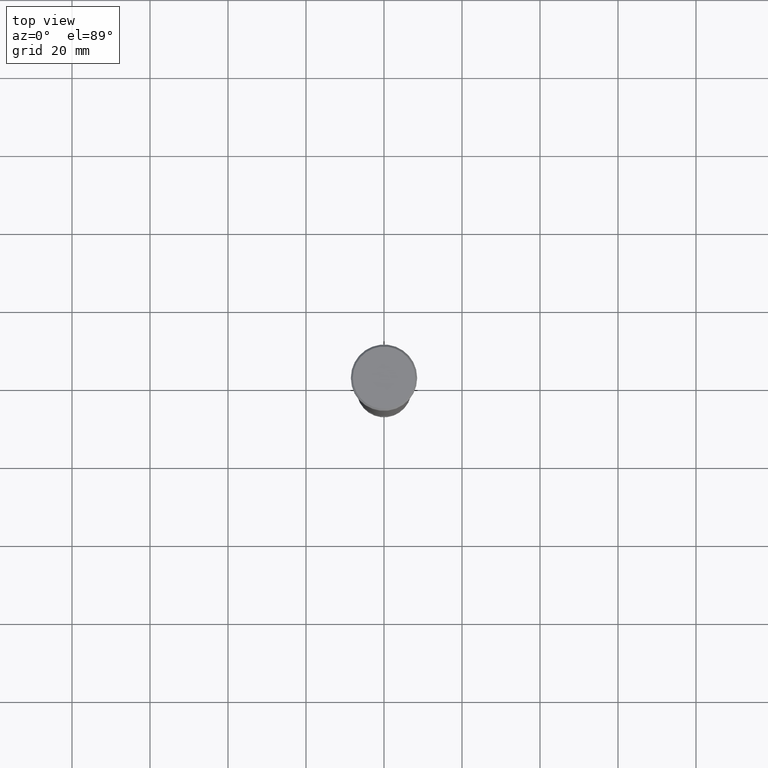
[diagram: clean part render]
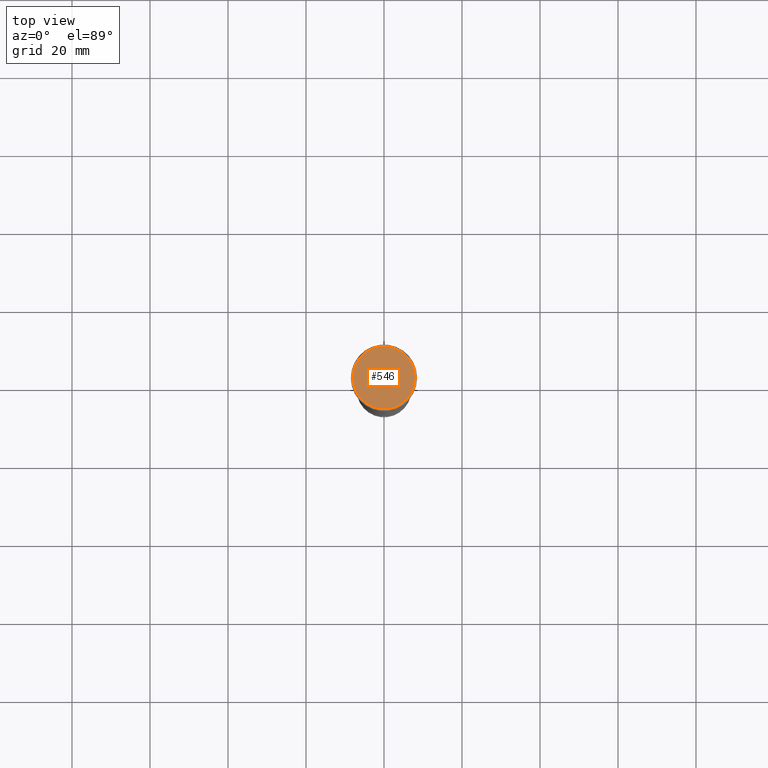
[diagram: same view with one face highlighted and labeled with its STEP entity id]
A machine part, top view. The second image highlights one B-rep face of the part: STEP entity #546.
In plain terms, the highlighted planar face has unit normal (0, -0, 1).
Its self-contained STEP definition (entity closure, byte-faithful):
#62 = AXIS2_PLACEMENT_3D ( 'NONE', #536, #817, #749 ) ;
#63 = EDGE_CURVE ( 'NONE', #514, #682, #814, .T. ) ;
#73 = CARTESIAN_POINT ( 'NONE',  ( -8.000000000000007105, 0.000000000000000000, 0.000000000000000000 ) ) ;
#79 = EDGE_CURVE ( 'NONE', #682, #514, #764, .T. ) ;
#98 = DIRECTION ( 'NONE',  ( 1.000000000000000000, 0.000000000000000000, 0.000000000000000000 ) ) ;
#109 = DIRECTION ( 'NONE',  ( 1.000000000000000000, 0.000000000000000000, 0.000000000000000000 ) ) ;
#313 = CARTESIAN_POINT ( 'NONE',  ( 0.000000000000000000, 0.000000000000000000, 0.000000000000000000 ) ) ;
#315 = CARTESIAN_POINT ( 'NONE',  ( 0.000000000000000000, 0.000000000000000000, 0.000000000000000000 ) ) ;
#316 = ORIENTED_EDGE ( 'NONE', *, *, #79, .T. ) ;
#379 = PLANE ( 'NONE',  #675 ) ;
#514 = VERTEX_POINT ( 'NONE', #707 ) ;
#536 = CARTESIAN_POINT ( 'NONE',  ( 0.000000000000000000, 0.000000000000000000, 0.000000000000000000 ) ) ;
#546 = ADVANCED_FACE ( 'NONE', ( #998 ), #379, .T. ) ;
#564 = DIRECTION ( 'NONE',  ( 0.000000000000000000, -0.000000000000000000, 1.000000000000000000 ) ) ;
#675 = AXIS2_PLACEMENT_3D ( 'NONE', #313, #564, #109 ) ;
#682 = VERTEX_POINT ( 'NONE', #73 ) ;
#707 = CARTESIAN_POINT ( 'NONE',  ( 8.000000000000007105, 1.010333609296566944E-15, 0.000000000000000000 ) ) ;
#749 = DIRECTION ( 'NONE',  ( 1.000000000000000000, 0.000000000000000000, 0.000000000000000000 ) ) ;
#760 = AXIS2_PLACEMENT_3D ( 'NONE', #315, #875, #98 ) ;
#764 = CIRCLE ( 'NONE', #760, 8.000000000000007105 ) ;
#814 = CIRCLE ( 'NONE', #62, 8.000000000000007105 ) ;
#817 = DIRECTION ( 'NONE',  ( -0.000000000000000000, -0.000000000000000000, 1.000000000000000000 ) ) ;
#818 = ORIENTED_EDGE ( 'NONE', *, *, #63, .T. ) ;
#875 = DIRECTION ( 'NONE',  ( -0.000000000000000000, -0.000000000000000000, 1.000000000000000000 ) ) ;
#998 = FACE_OUTER_BOUND ( 'NONE', #1147, .T. ) ;
#1147 = EDGE_LOOP ( 'NONE', ( #316, #818 ) ) ;